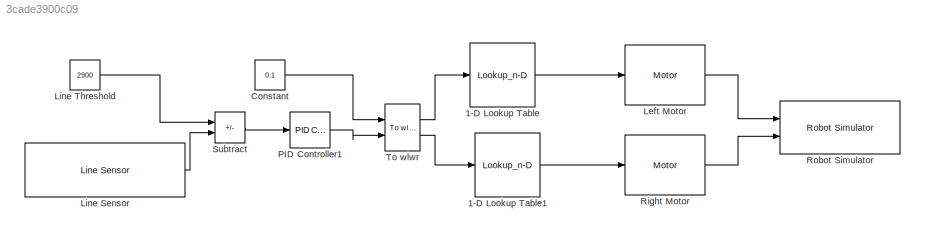
MODEL slx_3cade3900c09
KIND model
CONFIG AbsTol = auto
CONFIG EnableMultiTasking = off
CONFIG FixedStep = 0.01
CONFIG MaxStep = auto
CONFIG MinStep = auto
CONFIG RelTol = 1e-3
CONFIG SampleTimeConstraint = Unconstrained
CONFIG Solver = FixedStepDiscrete
CONFIG SolverName = FixedStepDiscrete
CONFIG StartTime = 0.0
CONFIG StopTime = 15.0
BLOCK [Lookup_n-D] 1-D Lookup Table
  BreakpointsForDimension1 = motorSp
  InternalRulePriority = Speed
  NumberOfTableDimensions = 1
  Ports = [1, 1]
  RndMeth = Simplest
  Table = motorIp
BLOCK [Lookup_n-D] 1-D Lookup Table1
  BreakpointsForDimension1 = motorSp
  InternalRulePriority = Speed
  NumberOfTableDimensions = 1
  Ports = [1, 1]
  RndMeth = Simplest
  Table = motorIp
BLOCK [Constant] Constant
  Value = 0.1
BLOCK [Reference] Left Motor  REF=mobileRoboticsTrainingLib/Motor
  Ports = [1, 1]
  SourceBlock = mobileRoboticsTrainingLib/Motor
  SourceProductName = Mobile Robotics Training Library
  SourceType = Motor Model
BLOCK [Reference] Line Sensor  REF=mobileRoboticsTrainingLib/Line Sensor
  Ports = [0, 1]
  SourceBlock = mobileRoboticsTrainingLib/Line Sensor
  SourceProductName = Mobile Robotics Training Library
  SourceType = Line Sensor Simulation
BLOCK [Constant] Line Threshold
  Value = 2900
BLOCK [Reference] PID Controller1  REF=simulink/Continuous/PID Controller
  Ports = [1, 1]
  SourceBlock = simulink/Continuous/PID Controller
  SourceProductBaseCode = SL
  SourceType = PID 1dof
BLOCK [Reference] Right Motor  REF=mobileRoboticsTrainingLib/Motor
  Ports = [1, 1]
  SourceBlock = mobileRoboticsTrainingLib/Motor
  SourceProductName = Mobile Robotics Training Library
  SourceType = Motor Model
BLOCK [Reference] Robot Simulator  REF=mobileRoboticsTrainingLib/Robot Simulator
  Ports = [2]
  Priority = 99
  SourceBlock = mobileRoboticsTrainingLib/Robot Simulator
  SourceProductName = Mobile Robotics Training Library
  SourceType = Robot Simulator
BLOCK [Sum] Subtract
  IconShape = rectangular
  Inputs = +-
  Ports = [2, 1]
BLOCK [Reference] To wlwr  REF=mobileRoboticsTrainingLib/To wlwr
  Ports = [2, 2]
  SourceBlock = mobileRoboticsTrainingLib/To wlwr
  SourceProductName = Mobile Robotics Training Library
  SourceType = To wlwr
LINE 1-D Lookup Table1:1 -> Right Motor:1
LINE 1-D Lookup Table:1 -> Left Motor:1
LINE Constant:1 -> To wlwr:1
LINE Left Motor:1 -> Robot Simulator:1
LINE Line Sensor:1 -> Subtract:2
LINE Line Threshold:1 -> Subtract:1
LINE PID Controller1:1 -> To wlwr:2
LINE Right Motor:1 -> Robot Simulator:2
LINE Subtract:1 -> PID Controller1:1
LINE To wlwr:1 -> 1-D Lookup Table:1
LINE To wlwr:2 -> 1-D Lookup Table1:1
